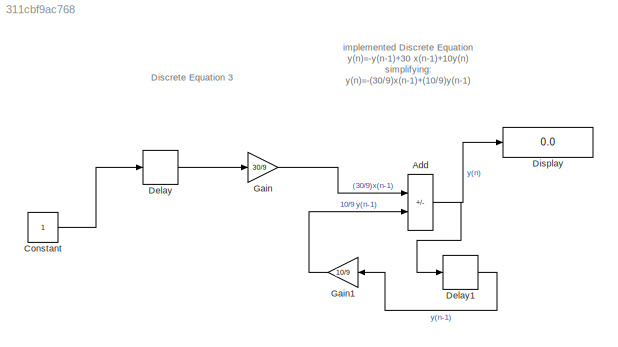
MODEL slx_311cbf9ac768
KIND model
CONFIG AbsTol = auto
CONFIG EnableMultiTasking = off
CONFIG FixedStep = auto
CONFIG MaxStep = auto
CONFIG MinStep = auto
CONFIG RelTol = 1e-3
CONFIG SampleTimeConstraint = Unconstrained
CONFIG SolverName = VariableStepAuto
CONFIG StartTime = 0.0
CONFIG StopTime = 10.0
WORKSPACE source: mxarray member
WORKSPACE k = 1
BLOCK [Sum] Add
  IconShape = rectangular
  Inputs = -+
  Ports = [2, 1]
BLOCK [Constant] Constant
BLOCK [Delay] Delay
  DelayLength = 1
  InputPortMap = u0
  Ports = [1, 1]
BLOCK [Delay] Delay1
  DelayLength = 1
  InputPortMap = u0
  Ports = [1, 1]
BLOCK [Display] Display
  Decimation = 1
  Ports = [1]
BLOCK [Gain] Gain
  Gain = 30/9
BLOCK [Gain] Gain1
  Gain = 10/9
ANNOTATION (root): Discrete Equation 3
ANNOTATION (root): implemented Discrete Equation y(n)=-y(n-1)+30 x(n-1)+10y(n) simplifying: y(n)=-(30/9)x(n-1)+(10/9)y(n-1)
NET Add:1 -> Delay1:1, Display:1
LINE Constant:1 -> Delay:1
LINE Delay1:1 -> Gain1:1
LINE Delay:1 -> Gain:1
LINE Gain1:1 -> Add:2
LINE Gain:1 -> Add:1
note: NET lines group one-source signal fan-out (src -> all destinations, sorted); 1:1 wires keep LINE
